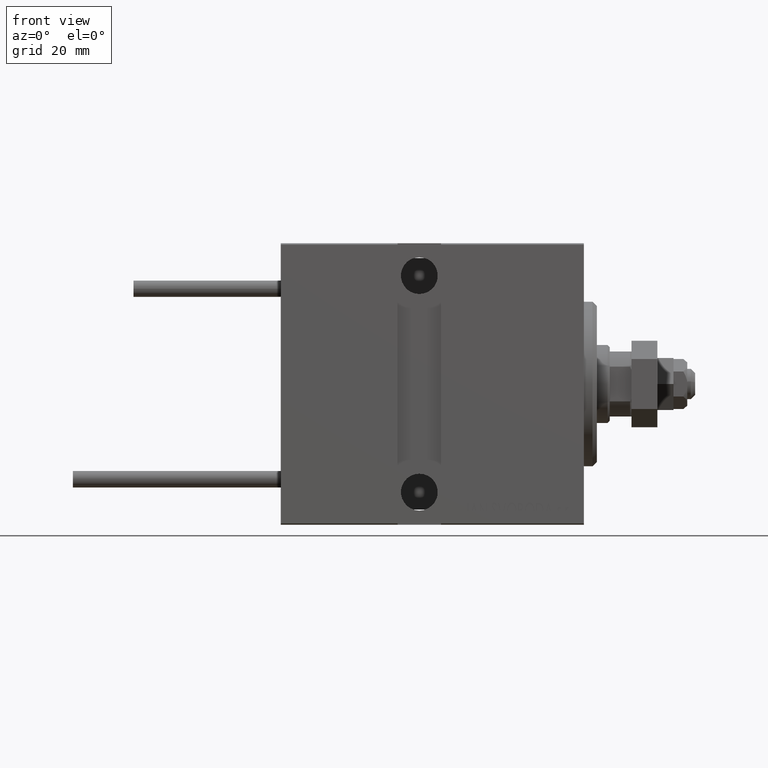
[diagram: clean part render]
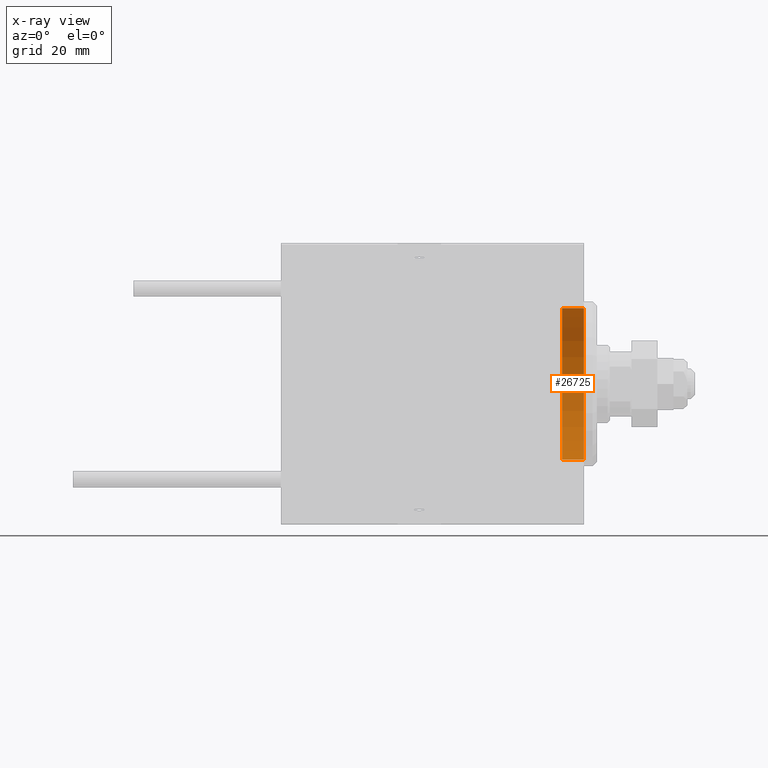
[diagram: x-ray — body ghosted, one internal face saturated and labeled with its STEP entity id]
A machine part, front view, then the same camera in x-ray: the body is ghosted and one INTERNAL B-rep face — a face not visible from any outside direction — is saturated and labeled: STEP entity #26725.
In plain terms, the highlighted cylindrical surface (partial cylindrical patch) has radius 17.5 mm, axis along (1, 0, 0).
Its self-contained STEP definition (entity closure, byte-faithful):
#108 = CARTESIAN_POINT ( 'NONE',  ( -5.000000000000000000, 0.000000000000000000, 0.000000000000000000 ) ) ;
#1379 = AXIS2_PLACEMENT_3D ( 'NONE', #6985, #33765, #19351 ) ;
#3354 = VERTEX_POINT ( 'NONE', #29679 ) ;
#4398 = DIRECTION ( 'NONE',  ( 1.000000000000000000, 0.000000000000000000, 0.000000000000000000 ) ) ;
#4799 = LINE ( 'NONE', #5557, #33604 ) ;
#5093 = CIRCLE ( 'NONE', #39769, 17.50000000000000355 ) ;
#5557 = CARTESIAN_POINT ( 'NONE',  ( -5.000000000000000000, 0.000000000000000000, -17.50000000000000355 ) ) ;
#6035 = CARTESIAN_POINT ( 'NONE',  ( 0.000000000000000000, 0.000000000000000000, 0.000000000000000000 ) ) ;
#6985 = CARTESIAN_POINT ( 'NONE',  ( -5.000000000000000000, 0.000000000000000000, 0.000000000000000000 ) ) ;
#7009 = EDGE_LOOP ( 'NONE', ( #19009, #36538, #48270, #14665 ) ) ;
#7680 = FACE_OUTER_BOUND ( 'NONE', #7009, .T. ) ;
#9195 = EDGE_CURVE ( 'NONE', #39081, #3354, #4799, .T. ) ;
#14665 = ORIENTED_EDGE ( 'NONE', *, *, #9195, .F. ) ;
#15773 = VERTEX_POINT ( 'NONE', #33018 ) ;
#17927 = EDGE_CURVE ( 'NONE', #15773, #40550, #27002, .T. ) ;
#19009 = ORIENTED_EDGE ( 'NONE', *, *, #20889, .T. ) ;
#19298 = DIRECTION ( 'NONE',  ( 0.000000000000000000, 0.000000000000000000, -1.000000000000000000 ) ) ;
#19351 = DIRECTION ( 'NONE',  ( 0.000000000000000000, 0.000000000000000000, -1.000000000000000000 ) ) ;
#20889 = EDGE_CURVE ( 'NONE', #39081, #15773, #37642, .T. ) ;
#21438 = DIRECTION ( 'NONE',  ( 1.000000000000000000, 0.000000000000000000, 0.000000000000000000 ) ) ;
#23594 = CYLINDRICAL_SURFACE ( 'NONE', #32930, 17.50000000000000355 ) ;
#23663 = DIRECTION ( 'NONE',  ( 0.000000000000000000, 0.000000000000000000, -1.000000000000000000 ) ) ;
#25003 = DIRECTION ( 'NONE',  ( 1.000000000000000000, 0.000000000000000000, 0.000000000000000000 ) ) ;
#26725 = ADVANCED_FACE ( 'NONE', ( #7680 ), #23594, .T. ) ;
#27002 = LINE ( 'NONE', #42395, #29506 ) ;
#27944 = CARTESIAN_POINT ( 'NONE',  ( -5.000000000000000000, 0.000000000000000000, -17.50000000000000355 ) ) ;
#29506 = VECTOR ( 'NONE', #49452, 1000.000000000000000 ) ;
#29679 = CARTESIAN_POINT ( 'NONE',  ( 0.000000000000000000, 0.000000000000000000, -17.50000000000000355 ) ) ;
#32930 = AXIS2_PLACEMENT_3D ( 'NONE', #108, #4398, #19298 ) ;
#33018 = CARTESIAN_POINT ( 'NONE',  ( -5.000000000000000000, 2.143131898507868643E-15, 17.50000000000000355 ) ) ;
#33604 = VECTOR ( 'NONE', #25003, 1000.000000000000000 ) ;
#33765 = DIRECTION ( 'NONE',  ( 1.000000000000000000, 0.000000000000000000, 0.000000000000000000 ) ) ;
#36538 = ORIENTED_EDGE ( 'NONE', *, *, #17927, .T. ) ;
#37642 = CIRCLE ( 'NONE', #1379, 17.50000000000000355 ) ;
#38956 = EDGE_CURVE ( 'NONE', #3354, #40550, #5093, .T. ) ;
#39081 = VERTEX_POINT ( 'NONE', #27944 ) ;
#39769 = AXIS2_PLACEMENT_3D ( 'NONE', #6035, #21438, #23663 ) ;
#40550 = VERTEX_POINT ( 'NONE', #47748 ) ;
#42395 = CARTESIAN_POINT ( 'NONE',  ( -5.000000000000000000, 2.143131898507868643E-15, 17.50000000000000355 ) ) ;
#47748 = CARTESIAN_POINT ( 'NONE',  ( 0.000000000000000000, 2.143131898507868643E-15, 17.50000000000000355 ) ) ;
#48270 = ORIENTED_EDGE ( 'NONE', *, *, #38956, .F. ) ;
#49452 = DIRECTION ( 'NONE',  ( 1.000000000000000000, 0.000000000000000000, 0.000000000000000000 ) ) ;